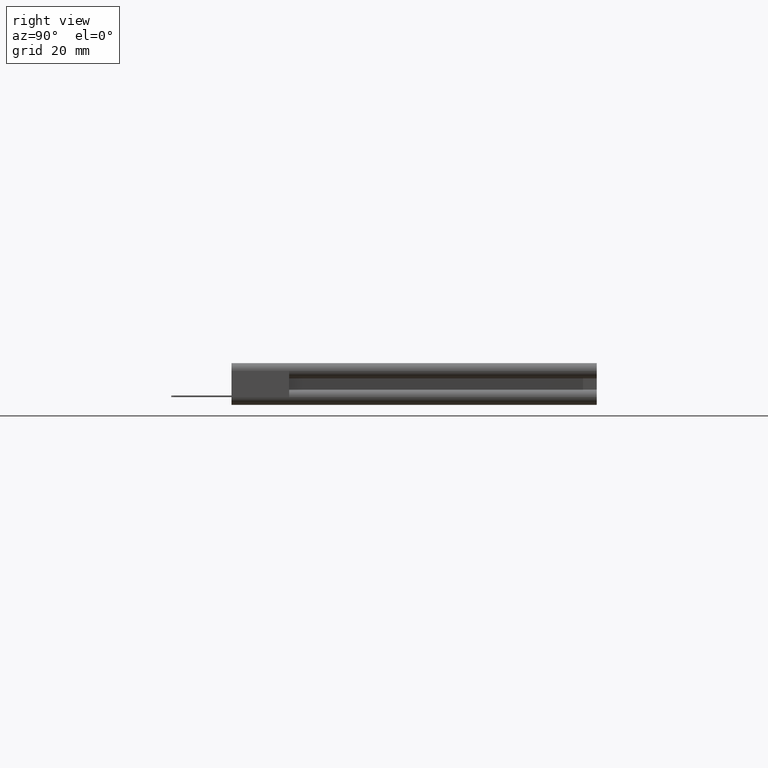
[diagram: clean part render]
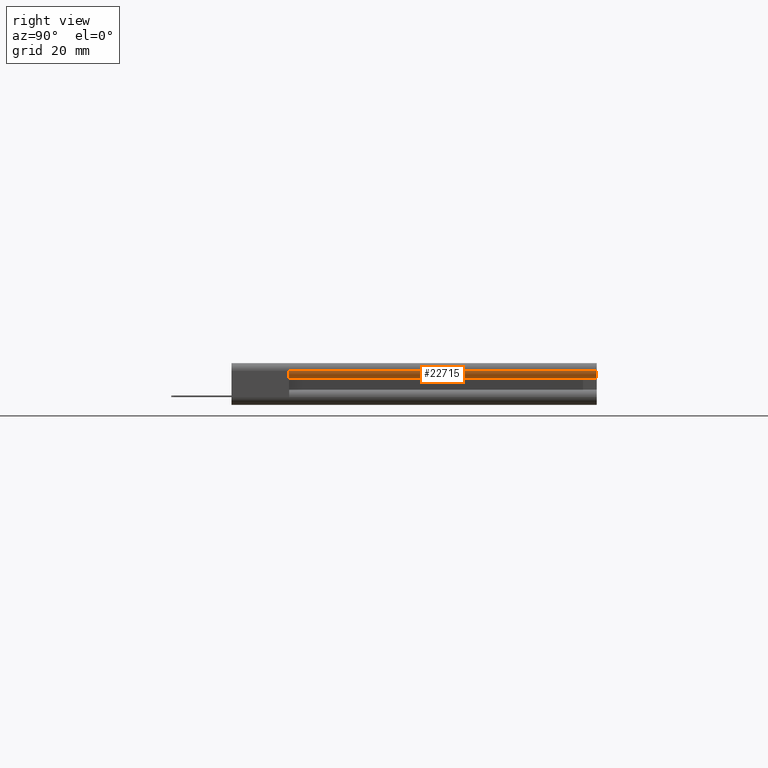
[diagram: same view with one face highlighted and labeled with its STEP entity id]
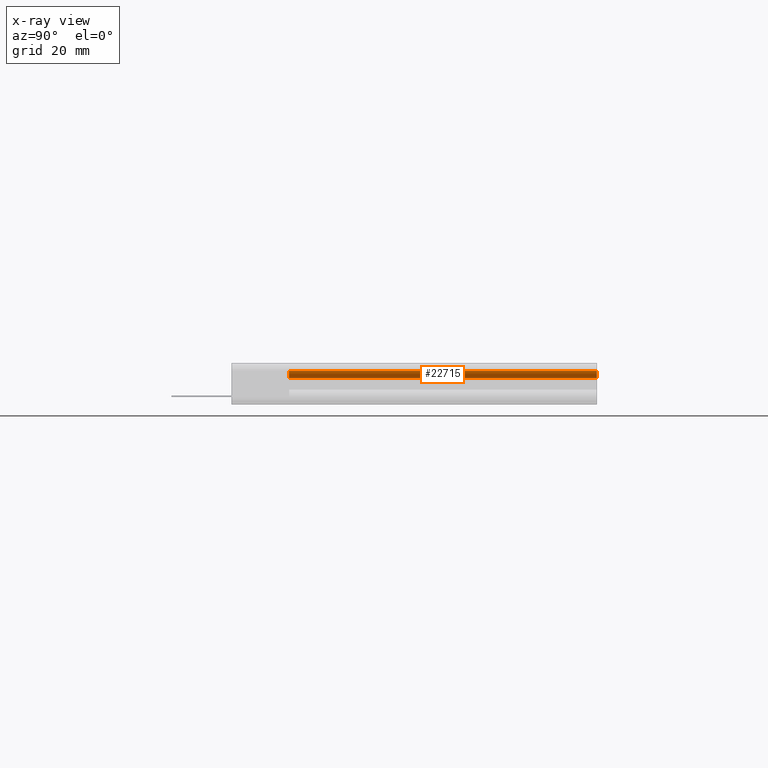
[diagram: x-ray of the same camera — body ghosted, the highlighted face saturated]
A machine part, right view. The second image highlights one B-rep face of the part: STEP entity #22715.
The next image is the same camera in x-ray: the body ghosted, the highlighted face saturated — about 0% of this face is hidden behind the body in this view.
In plain terms, the highlighted cylindrical surface (edge-blend (fillet) strip) has radius 1.6256 mm, axis along (0, -1, 0).
Its self-contained STEP definition (entity closure, byte-faithful):
#548 = AXIS2_PLACEMENT_3D ( 'NONE', #15522, #21913, #21814 ) ;
#726 = EDGE_LOOP ( 'NONE', ( #6243, #7342, #23360, #20890 ) ) ;
#820 = EDGE_CURVE ( 'NONE', #11385, #937, #7663, .T. ) ;
#937 = VERTEX_POINT ( 'NONE', #18812 ) ;
#1096 = DIRECTION ( 'NONE',  ( 0.0000000000000000000, -1.000000000000000000, 0.0000000000000000000 ) ) ;
#1233 = DIRECTION ( 'NONE',  ( -0.0000000000000000000, 1.000000000000000000, -0.0000000000000000000 ) ) ;
#3330 = EDGE_CURVE ( 'NONE', #937, #5521, #8677, .T. ) ;
#3741 = FACE_OUTER_BOUND ( 'NONE', #726, .T. ) ;
#4625 = DIRECTION ( 'NONE',  ( -0.0000000000000000000, 1.000000000000000000, -0.0000000000000000000 ) ) ;
#4717 = CARTESIAN_POINT ( 'NONE',  ( 4.875000000000000900, 0.0000000000000000000, 0.1072947366142829200 ) ) ;
#5521 = VERTEX_POINT ( 'NONE', #6233 ) ;
#6233 = CARTESIAN_POINT ( 'NONE',  ( 4.875000000000000900, 3.000000000000000400, 0.1072947366142829200 ) ) ;
#6243 = ORIENTED_EDGE ( 'NONE', *, *, #820, .F. ) ;
#7342 = ORIENTED_EDGE ( 'NONE', *, *, #7813, .T. ) ;
#7663 = CIRCLE ( 'NONE', #548, 0.06400000000000000100 ) ;
#7813 = EDGE_CURVE ( 'NONE', #11385, #17834, #21724, .T. ) ;
#8677 = LINE ( 'NONE', #4717, #22473 ) ;
#10837 = CARTESIAN_POINT ( 'NONE',  ( 4.811000000000000800, 3.000000000000000400, 0.1072947366142829200 ) ) ;
#11087 = CARTESIAN_POINT ( 'NONE',  ( 4.830999999999999500, 0.4729999999999994200, 0.04650000000000000000 ) ) ;
#11385 = VERTEX_POINT ( 'NONE', #11087 ) ;
#12295 = DIRECTION ( 'NONE',  ( 0.0000000000000000000, 0.0000000000000000000, -1.000000000000000000 ) ) ;
#12666 = DIRECTION ( 'NONE',  ( 0.0000000000000000000, 0.0000000000000000000, -1.000000000000000000 ) ) ;
#13183 = EDGE_CURVE ( 'NONE', #5521, #17834, #16092, .T. ) ;
#15522 = CARTESIAN_POINT ( 'NONE',  ( 4.811000000000000800, 0.4729999999999994200, 0.1072947366142829200 ) ) ;
#16092 = CIRCLE ( 'NONE', #16117, 0.06400000000000000100 ) ;
#16117 = AXIS2_PLACEMENT_3D ( 'NONE', #10837, #23333, #12666 ) ;
#17803 = CYLINDRICAL_SURFACE ( 'NONE', #19831, 0.06400000000000000100 ) ;
#17834 = VERTEX_POINT ( 'NONE', #23575 ) ;
#18812 = CARTESIAN_POINT ( 'NONE',  ( 4.875000000000000000, 0.4729999999999994200, 0.1072947366142829200 ) ) ;
#19406 = CARTESIAN_POINT ( 'NONE',  ( 4.811000000000000800, 0.3701165708192027900, 0.1072947366142829200 ) ) ;
#19831 = AXIS2_PLACEMENT_3D ( 'NONE', #19406, #1096, #12295 ) ;
#20890 = ORIENTED_EDGE ( 'NONE', *, *, #3330, .F. ) ;
#21167 = VECTOR ( 'NONE', #1233, 39.37007874015748100 ) ;
#21338 = CARTESIAN_POINT ( 'NONE',  ( 4.830999999999999500, 0.3701165708192027900, 0.04650000000000000000 ) ) ;
#21724 = LINE ( 'NONE', #21338, #21167 ) ;
#21814 = DIRECTION ( 'NONE',  ( 0.0000000000000000000, 0.0000000000000000000, -1.000000000000000000 ) ) ;
#21913 = DIRECTION ( 'NONE',  ( 0.0000000000000000000, -1.000000000000000000, 0.0000000000000000000 ) ) ;
#22473 = VECTOR ( 'NONE', #4625, 39.37007874015748100 ) ;
#22715 = ADVANCED_FACE ( 'NONE', ( #3741 ), #17803, .T. ) ;
#23333 = DIRECTION ( 'NONE',  ( -0.0000000000000000000, 1.000000000000000000, -0.0000000000000000000 ) ) ;
#23360 = ORIENTED_EDGE ( 'NONE', *, *, #13183, .F. ) ;
#23575 = CARTESIAN_POINT ( 'NONE',  ( 4.830999999999999500, 3.000000000000000400, 0.04650000000000000000 ) ) ;